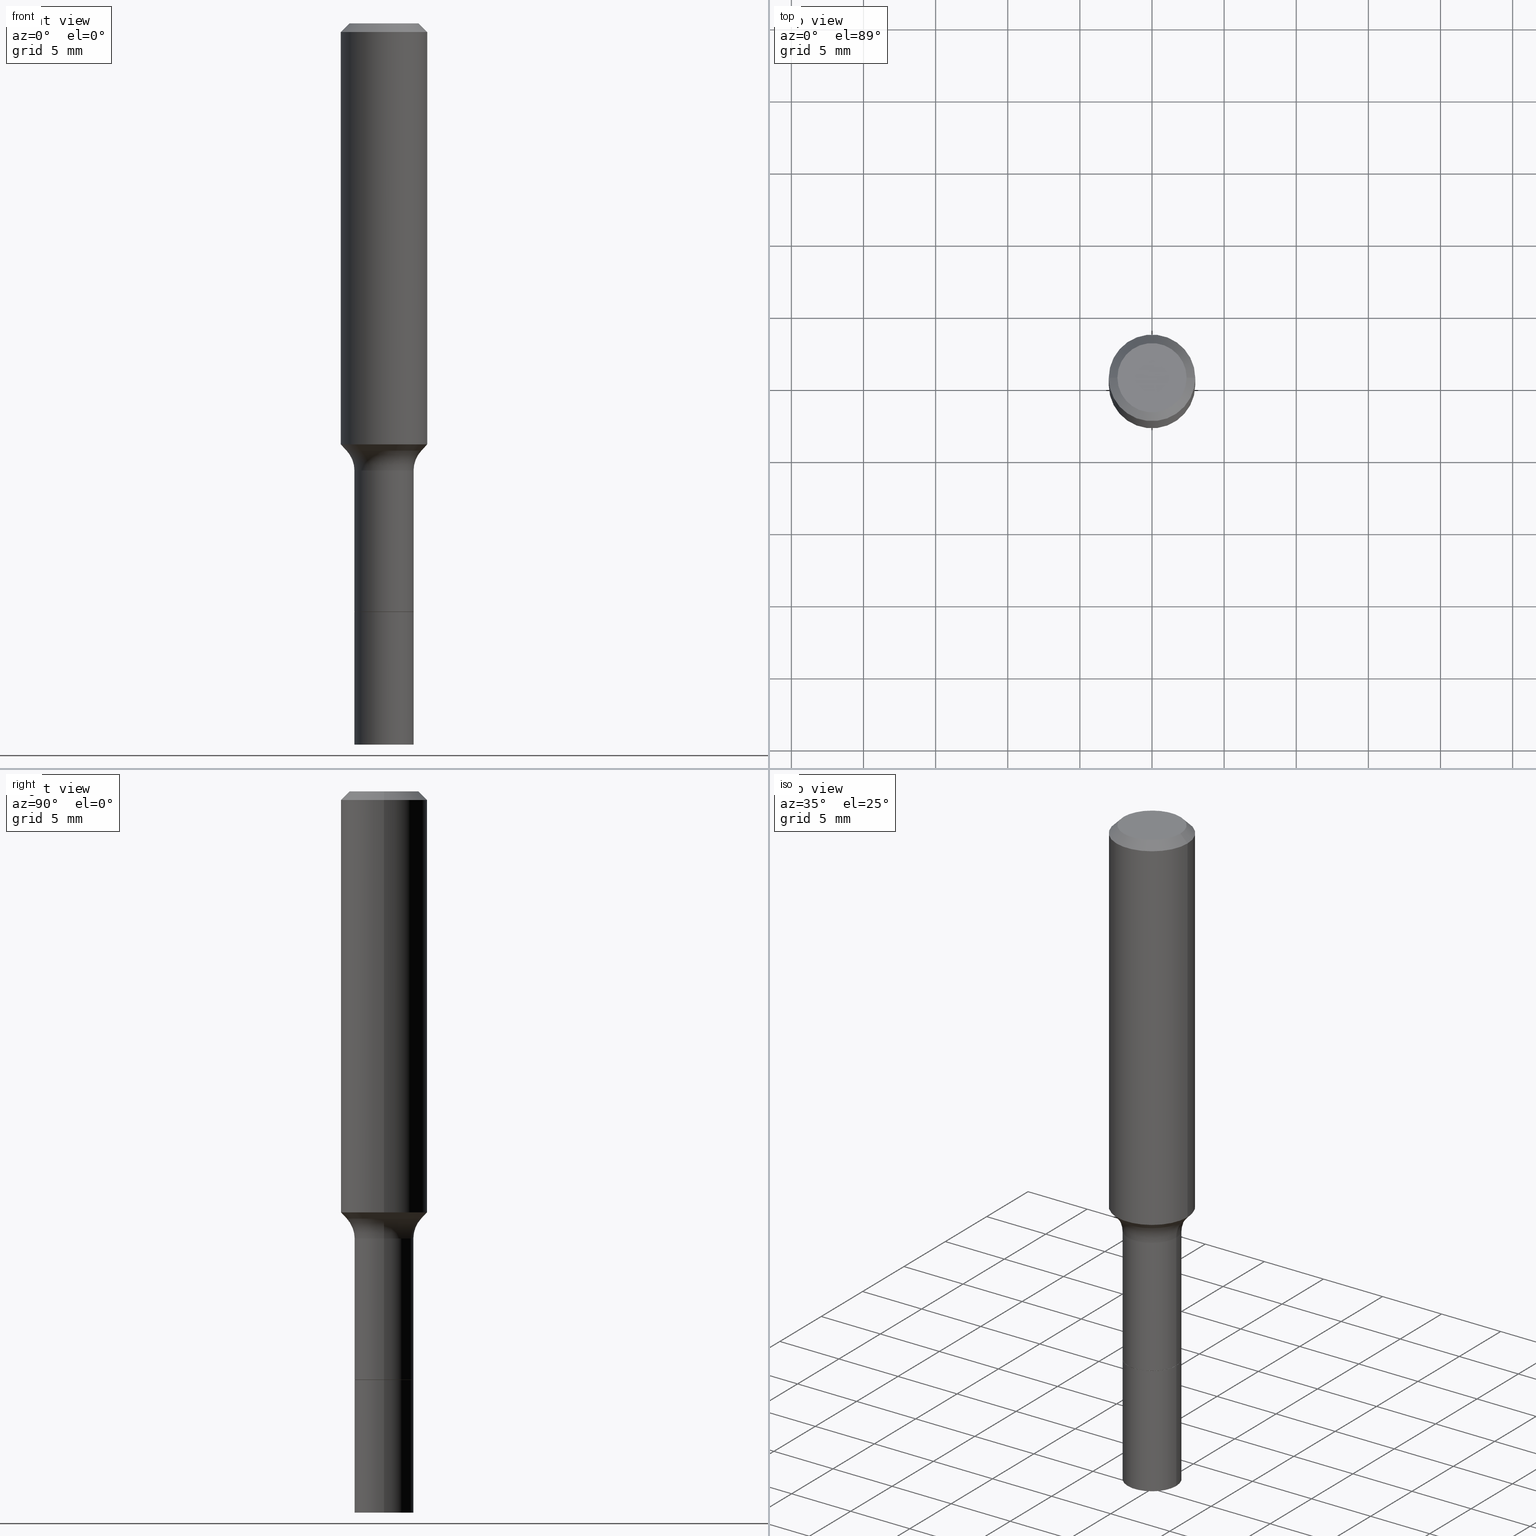
[diagram: canonical four-view strip — front | top / right | iso, engineering-drawing reading convention]
A machine part, canonical four-view strip (front | top / right | iso — engineering-drawing reading convention). The complete STEP part file that produces these views, byte-faithful:
ISO-10303-21;
HEADER;
FILE_DESCRIPTION (( 'STEP AP203' ),
    '1' );
FILE_NAME ('67086.STEP',
    '2025-04-01T15:28:01',
    ( '' ),
    ( '' ),
    'SwSTEP 2.0',
    'SolidWorks 2024',
    '' );
FILE_SCHEMA (( 'CONFIG_CONTROL_DESIGN' ));
ENDSEC;

DATA;
#1 = VERTEX_POINT ( 'NONE', #60 ) ;
#2 = VECTOR ( 'NONE', #232, 39.37007874015748143 ) ;
#3 = CC_DESIGN_SECURITY_CLASSIFICATION ( #262, ( #162 ) ) ;
#4 = ORIENTED_EDGE ( 'NONE', *, *, #180, .F. ) ;
#5 = VECTOR ( 'NONE', #122, 39.37007874015748143 ) ;
#6 = CIRCLE ( 'NONE', #305, 0.08070000000000010498 ) ;
#7 = ADVANCED_FACE ( 'NONE', ( #342 ), #13, .T. ) ;
#8 = EDGE_CURVE ( 'NONE', #140, #25, #467, .T. ) ;
#9 = VERTEX_POINT ( 'NONE', #379 ) ;
#10 = ORIENTED_EDGE ( 'NONE', *, *, #441, .F. ) ;
#11 = EDGE_CURVE ( 'NONE', #90, #1, #235, .T. ) ;
#12 = DIRECTION ( 'NONE',  ( 2.438088387897960049E-29, -3.491481338843145188E-15, -1.000000000000000000 ) ) ;
#13 = CONICAL_SURFACE ( 'NONE', #506, 0.1180999999999999966, 0.7853981633974461696 ) ;
#14 = VERTEX_POINT ( 'NONE', #344 ) ;
#15 = CIRCLE ( 'NONE', #303, 0.1180999999999999966 ) ;
#16 = ORIENTED_EDGE ( 'NONE', *, *, #205, .T. ) ;
#17 = CARTESIAN_POINT ( 'NONE',  ( 0.000000000000000000, 0.000000000000000000, 0.000000000000000000 ) ) ;
#18 = ADVANCED_FACE ( 'NONE', ( #424 ), #72, .F. ) ;
#19 = EDGE_LOOP ( 'NONE', ( #297, #458, #502, #301 ) ) ;
#20 = CARTESIAN_POINT ( 'NONE',  ( 3.928645637136421723E-29, -5.609064770851513425E-15, -1.606499999999999817 ) ) ;
#21 = CARTESIAN_POINT ( 'NONE',  ( 0.08069999999999999396, -6.172589858940796076E-15, -1.606499999999999817 ) ) ;
#22 = CARTESIAN_POINT ( 'NONE',  ( 4.813905344975441835E-29, -6.872981015512731707E-15, -1.968500000000000139 ) ) ;
#23 = CARTESIAN_POINT ( 'NONE',  ( 0.1181000000000001354, -4.835982970616103918E-15, -1.148880572195881467 ) ) ;
#24 = AXIS2_PLACEMENT_3D ( 'NONE', #269, #302, #188 ) ;
#25 = VERTEX_POINT ( 'NONE', #62 ) ;
#26 = LINE ( 'NONE', #228, #67 ) ;
#27 = EDGE_CURVE ( 'NONE', #270, #290, #396, .T. ) ;
#28 = DIRECTION ( 'NONE',  ( -2.445468806185136597E-29, 3.491481338843145583E-15, 1.000000000000000000 ) ) ;
#29 = FACE_OUTER_BOUND ( 'NONE', #334, .T. ) ;
#30 = EDGE_CURVE ( 'NONE', #293, #127, #65, .T. ) ;
#31 = DIRECTION ( 'NONE',  ( -1.000000000000000000, 7.105427357601005014E-15, 0.000000000000000000 ) ) ;
#32 = LOCAL_TIME ( 11, 28, 1.000000000000000000, #479 ) ;
#33 = AXIS2_PLACEMENT_3D ( 'NONE', #498, #70, #225 ) ;
#34 = APPROVAL_DATE_TIME ( #321, #242 ) ;
#35 = EDGE_CURVE ( 'NONE', #9, #127, #478, .T. ) ;
#36 = PERSON_AND_ORGANIZATION_ROLE ( 'creator' ) ;
#37 = DIRECTION ( 'NONE',  ( -2.445468806185136877E-29, 3.491481338843145188E-15, 1.000000000000000000 ) ) ;
#38 = DIRECTION ( 'NONE',  ( 1.000000000000000000, -6.982962677686265133E-15, 0.000000000000000000 ) ) ;
#39 = CALENDAR_DATE ( 2025, 1, 4 ) ;
#40 = CARTESIAN_POINT ( 'NONE',  ( -0.1180999999999999966, -1.207730962869736176E-15, -0.02362000000000014435 ) ) ;
#41 = CARTESIAN_POINT ( 'NONE',  ( 0.1606999999999999540, -5.383515076362241754E-15, -1.220499999999999918 ) ) ;
#42 = AXIS2_PLACEMENT_3D ( 'NONE', #195, #482, #392 ) ;
#43 = APPLICATION_CONTEXT ( 'configuration controlled 3d designs of mechanical parts and assemblies' ) ;
#44 = EDGE_LOOP ( 'NONE', ( #407, #504, #405, #57 ) ) ;
#45 = AXIS2_PLACEMENT_3D ( 'NONE', #22, #187, #347 ) ;
#46 = LINE ( 'NONE', #136, #371 ) ;
#47 = ORIENTED_EDGE ( 'NONE', *, *, #480, .T. ) ;
#48 = PRODUCT_RELATED_PRODUCT_CATEGORY ( 'detail', '', ( #175 ) ) ;
#49 = ORIENTED_EDGE ( 'NONE', *, *, #27, .T. ) ;
#50 = EDGE_CURVE ( 'NONE', #461, #127, #15, .T. ) ;
#51 = DIRECTION ( 'NONE',  ( 1.000000000000000000, -6.982962677686261977E-15, 0.000000000000000000 ) ) ;
#52 = ORIENTED_EDGE ( 'NONE', *, *, #106, .F. ) ;
#53 = AXIS2_PLACEMENT_3D ( 'NONE', #284, #287, #483 ) ;
#54 = AXIS2_PLACEMENT_3D ( 'NONE', #124, #207, #278 ) ;
#55 = ORIENTED_EDGE ( 'NONE', *, *, #480, .F. ) ;
#56 = CARTESIAN_POINT ( 'NONE',  ( -0.1021917038704663744, -3.344742481874600087E-15, -1.165940131195000173 ) ) ;
#57 = ORIENTED_EDGE ( 'NONE', *, *, #139, .F. ) ;
#58 = ORIENTED_EDGE ( 'NONE', *, *, #415, .F. ) ;
#59 = DIRECTION ( 'NONE',  ( -2.445468806185136597E-29, 3.491481338843145583E-15, 1.000000000000000000 ) ) ;
#60 = CARTESIAN_POINT ( 'NONE',  ( -0.08069999999999993845, -4.360928014361675851E-15, -1.220499999999999918 ) ) ;
#61 = FACE_OUTER_BOUND ( 'NONE', #19, .T. ) ;
#62 = CARTESIAN_POINT ( 'NONE',  ( 0.1021917038704663189, -4.784459064372305564E-15, -1.165940131195000173 ) ) ;
#63 = PLANE ( 'NONE',  #264 ) ;
#64 = EDGE_CURVE ( 'NONE', #270, #14, #473, .T. ) ;
#65 = LINE ( 'NONE', #384, #2 ) ;
#66 = DIRECTION ( 'NONE',  ( -1.000000000000000000, 6.982962677686265922E-15, -4.876176775795935793E-29 ) ) ;
#67 = VECTOR ( 'NONE', #380, 39.37007874015748143 ) ;
#68 = EDGE_CURVE ( 'NONE', #299, #365, #151, .T. ) ;
#69 = APPROVAL_STATUS ( 'not_yet_approved' ) ;
#70 = DIRECTION ( 'NONE',  ( -2.445468806185136597E-29, 3.491481338843145583E-15, 1.000000000000000000 ) ) ;
#71 = DIRECTION ( 'NONE',  ( 1.000000000000000000, -6.982962677686265922E-15, 4.876176775795935793E-29 ) ) ;
#72 = TOROIDAL_SURFACE ( 'NONE', #211, 0.1606999999999999540, 0.08000000000000000167 ) ;
#73 = SECURITY_CLASSIFICATION_LEVEL ( 'unclassified' ) ;
#74 = DIRECTION ( 'NONE',  ( 1.000000000000000000, -6.982962677686265922E-15, 0.000000000000000000 ) ) ;
#75 = PRODUCT_DEFINITION ( 'UNKNOWN', '', #162, #341 ) ;
#76 = AXIS2_PLACEMENT_3D ( 'NONE', #78, #203, #71 ) ;
#77 = AXIS2_PLACEMENT_3D ( 'NONE', #429, #390, #31 ) ;
#78 = CARTESIAN_POINT ( 'NONE',  ( 1.074206145470067474E-30, -1.108127649382113880E-14, -1.606499999999999817 ) ) ;
#79 = PERSON_AND_ORGANIZATION ( #119, #432 ) ;
#80 = PLANE ( 'NONE',  #53 ) ;
#81 =( NAMED_UNIT ( * ) PLANE_ANGLE_UNIT ( ) SI_UNIT ( $, .RADIAN. ) );
#82 = DATE_AND_TIME ( #117, #417 ) ;
#83 = CARTESIAN_POINT ( 'NONE',  ( 0.000000000000000000, 0.000000000000000000, 0.000000000000000000 ) ) ;
#84 = ADVANCED_FACE ( 'NONE', ( #438 ), #471, .F. ) ;
#85 = ORIENTED_EDGE ( 'NONE', *, *, #11, .T. ) ;
#86 = DIRECTION ( 'NONE',  ( -2.445468806185136597E-29, 3.491481338843145583E-15, 1.000000000000000000 ) ) ;
#87 = ADVANCED_FACE ( 'NONE', ( #468 ), #170, .T. ) ;
#88 = ORIENTED_EDGE ( 'NONE', *, *, #349, .F. ) ;
#89 = ORIENTED_EDGE ( 'NONE', *, *, #277, .F. ) ;
#90 = VERTEX_POINT ( 'NONE', #475 ) ;
#91 = ADVANCED_FACE ( 'NONE', ( #120 ), #370, .F. ) ;
#92 = ORIENTED_EDGE ( 'NONE', *, *, #68, .T. ) ;
#93 = AXIS2_PLACEMENT_3D ( 'NONE', #333, #363, #126 ) ;
#94 = DIRECTION ( 'NONE',  ( -0.6819983600624995868, 7.399397606724291309E-15, 0.7313537016191693496 ) ) ;
#95 = PRODUCT_DEFINITION_SHAPE ( 'NONE', 'NONE',  #75 ) ;
#96 = ORIENTED_EDGE ( 'NONE', *, *, #35, .T. ) ;
#97 = DIRECTION ( 'NONE',  ( -2.445468806185136597E-29, 3.491481338843145583E-15, 1.000000000000000000 ) ) ;
#98 = MANIFOLD_SOLID_BREP ( 'Body-Move/Copy2[1]', #488 ) ;
#99 = ORIENTED_EDGE ( 'NONE', *, *, #109, .T. ) ;
#100 = DIRECTION ( 'NONE',  ( -2.445468806185136597E-29, 3.491481338843145583E-15, 1.000000000000000000 ) ) ;
#101 = LOCAL_TIME ( 11, 28, 1.000000000000000000, #193 ) ;
#102 = VERTEX_POINT ( 'NONE', #21 ) ;
#103 = CARTESIAN_POINT ( 'NONE',  ( -0.08069999999999999396, -4.360928014361675851E-15, -1.606000000000000094 ) ) ;
#104 = DIRECTION ( 'NONE',  ( 1.000000000000000000, -6.982962677686261977E-15, 0.000000000000000000 ) ) ;
#105 = DIRECTION ( 'NONE',  ( -2.445468806185136877E-29, 3.491481338843145188E-15, 1.000000000000000000 ) ) ;
#106 = EDGE_CURVE ( 'NONE', #9, #409, #213, .T. ) ;
#107 = DIRECTION ( 'NONE',  ( -2.445468806185136597E-29, 3.491481338843145583E-15, 1.000000000000000000 ) ) ;
#108 = CYLINDRICAL_SURFACE ( 'NONE', #364, 0.08070000000000004947 ) ;
#109 = EDGE_CURVE ( 'NONE', #1, #90, #500, .T. ) ;
#110 = DIRECTION ( 'NONE',  ( -2.445468806185136597E-29, 3.491481338843145583E-15, 1.000000000000000000 ) ) ;
#111 = CC_DESIGN_APPROVAL ( #463, ( #262 ) ) ;
#112 = ADVANCED_BREP_SHAPE_REPRESENTATION ( '67086', ( #98, #267, #186 ), #253 ) ;
#113 = DIMENSIONAL_EXPONENTS ( 1.000000000000000000, 0.000000000000000000, 0.000000000000000000, 0.000000000000000000, 0.000000000000000000, 0.000000000000000000, 0.000000000000000000 ) ;
#114 = AXIS2_PLACEMENT_3D ( 'NONE', #219, #443, #202 ) ;
#115 = PERSON_AND_ORGANIZATION ( #119, #432 ) ;
#116 = DIRECTION ( 'NONE',  ( 1.000000000000000000, -6.982962677686265922E-15, 0.000000000000000000 ) ) ;
#117 = CALENDAR_DATE ( 2025, 1, 4 ) ;
#118 =( LENGTH_UNIT ( ) NAMED_UNIT ( * ) SI_UNIT ( $, .METRE. ) );
#119 = PERSON ( 'UNSPECIFIED', 'UNSPECIFIED', 'UNSPECIFIED', ('UNSPECIFIED'), ('UNSPECIFIED'), ('UNSPECIFIED') ) ;
#120 = FACE_OUTER_BOUND ( 'NONE', #494, .T. ) ;
#121 = AXIS2_PLACEMENT_3D ( 'NONE', #487, #339, #209 ) ;
#122 = DIRECTION ( 'NONE',  ( 0.7071067811865460184, -7.319954787623251312E-15, -0.7071067811865490160 ) ) ;
#123 = DATE_TIME_ROLE ( 'classification_date' ) ;
#124 = CARTESIAN_POINT ( 'NONE',  ( 3.927422902733329482E-29, -5.607319030182091922E-15, -1.606000000000000094 ) ) ;
#125 = EDGE_CURVE ( 'NONE', #133, #299, #452, .T. ) ;
#126 = DIRECTION ( 'NONE',  ( 1.000000000000000000, -6.982962677686260400E-15, 0.000000000000000000 ) ) ;
#127 = VERTEX_POINT ( 'NONE', #135 ) ;
#128 = VECTOR ( 'NONE', #105, 39.37007874015748143 ) ;
#129 = EDGE_LOOP ( 'NONE', ( #404, #372, #497, #328 ) ) ;
#130 = ORIENTED_EDGE ( 'NONE', *, *, #27, .F. ) ;
#131 = ADVANCED_FACE ( 'NONE', ( #493 ), #80, .T. ) ;
#132 = LINE ( 'NONE', #56, #296 ) ;
#133 = VERTEX_POINT ( 'NONE', #413 ) ;
#134 = VECTOR ( 'NONE', #309, 39.37007874015748143 ) ;
#135 = CARTESIAN_POINT ( 'NONE',  ( 0.1180999999999999966, -9.071566814582237199E-16, -0.02362000000000014435 ) ) ;
#136 = CARTESIAN_POINT ( 'NONE',  ( -0.1180999999999999966, 7.422191030112725094E-16, -0.02362000000000014435 ) ) ;
#137 = CARTESIAN_POINT ( 'NONE',  ( 2.984694677948959472E-29, -4.261352974058059028E-15, -1.220499999999999918 ) ) ;
#138 = CARTESIAN_POINT ( 'NONE',  ( 3.928645637136422284E-29, -5.609064770851513425E-15, -1.606500000000000261 ) ) ;
#139 = EDGE_CURVE ( 'NONE', #365, #220, #346, .T. ) ;
#140 = VERTEX_POINT ( 'NONE', #298 ) ;
#141 = CARTESIAN_POINT ( 'NONE',  ( 5.776197320209328408E-31, -8.246878922347560526E-17, -0.02362000000000014435 ) ) ;
#142 = CIRCLE ( 'NONE', #42, 0.09447999999999998066 ) ;
#143 = DIRECTION ( 'NONE',  ( 1.000000000000000000, -6.982962677686265133E-15, 0.000000000000000000 ) ) ;
#144 = AXIS2_PLACEMENT_3D ( 'NONE', #316, #279, #74 ) ;
#145 = VECTOR ( 'NONE', #199, 39.37007874015748854 ) ;
#146 = EDGE_LOOP ( 'NONE', ( #288, #130 ) ) ;
#147 =( NAMED_UNIT ( * ) SI_UNIT ( $, .STERADIAN. ) SOLID_ANGLE_UNIT ( ) );
#148 = DIRECTION ( 'NONE',  ( 0.7071067811864267805, -2.468850131080992517E-15, 0.7071067811866682540 ) ) ;
#149 = CYLINDRICAL_SURFACE ( 'NONE', #329, 0.08069999999999998008 ) ;
#150 = AXIS2_PLACEMENT_3D ( 'NONE', #492, #107, #104 ) ;
#151 = LINE ( 'NONE', #312, #239 ) ;
#152 = PERSON_AND_ORGANIZATION_ROLE ( 'creator' ) ;
#153 = CC_DESIGN_APPROVAL ( #242, ( #75 ) ) ;
#154 = CONICAL_SURFACE ( 'NONE', #24, 0.1180999999999999966, 0.7853981633974461696 ) ;
#155 = DIRECTION ( 'NONE',  ( -0.7071067811864267805, 7.493145998869918709E-15, 0.7071067811866682540 ) ) ;
#156 = DIRECTION ( 'NONE',  ( 1.000000000000000000, -6.982962677686266711E-15, 0.000000000000000000 ) ) ;
#157 = APPLICATION_PROTOCOL_DEFINITION ( 'international standard', 'config_control_design', 1994, #43 ) ;
#158 = CARTESIAN_POINT ( 'NONE',  ( 3.928645637136421723E-29, -5.609064770851513425E-15, -1.606499999999999817 ) ) ;
#159 = APPROVAL_STATUS ( 'not_yet_approved' ) ;
#160 = CARTESIAN_POINT ( 'NONE',  ( 4.813905344975441835E-29, -6.872981015512731707E-15, -1.968500000000000139 ) ) ;
#161 = EDGE_CURVE ( 'NONE', #293, #447, #206, .T. ) ;
#162 = PRODUCT_DEFINITION_FORMATION_WITH_SPECIFIED_SOURCE ( 'ANY', '', #175, .NOT_KNOWN. ) ;
#163 = CARTESIAN_POINT ( 'NONE',  ( 2.851270220716778580E-29, -4.070858210275671756E-15, -1.165940131195000173 ) ) ;
#164 = PERSON_AND_ORGANIZATION ( #119, #432 ) ;
#165 = DIRECTION ( 'NONE',  ( -2.445468806185136597E-29, 3.491481338843145583E-15, 1.000000000000000000 ) ) ;
#166 = CC_DESIGN_PERSON_AND_ORGANIZATION_ASSIGNMENT ( #428, #36, ( #162 ) ) ;
#167 = EDGE_LOOP ( 'NONE', ( #210, #368, #249, #169 ) ) ;
#168 = DIRECTION ( 'NONE',  ( -6.982962677686266711E-15, -1.000000000000000000, 3.491481338843145583E-15 ) ) ;
#169 = ORIENTED_EDGE ( 'NONE', *, *, #477, .F. ) ;
#170 = CONICAL_SURFACE ( 'NONE', #144, 0.08019999999999999352, 0.7853981633972775267 ) ;
#171 = CC_DESIGN_PERSON_AND_ORGANIZATION_ASSIGNMENT ( #400, #152, ( #75 ) ) ;
#172 = AXIS2_PLACEMENT_3D ( 'NONE', #385, #110, #388 ) ;
#173 = ORIENTED_EDGE ( 'NONE', *, *, #161, .F. ) ;
#174 = ORIENTED_EDGE ( 'NONE', *, *, #477, .T. ) ;
#175 = PRODUCT ( '67086', '67086', '', ( #281 ) ) ;
#176 = EDGE_LOOP ( 'NONE', ( #517, #489, #177, #421 ) ) ;
#177 = ORIENTED_EDGE ( 'NONE', *, *, #311, .F. ) ;
#178 = AXIS2_PLACEMENT_3D ( 'NONE', #141, #348, #503 ) ;
#179 = DIRECTION ( 'NONE',  ( 1.000000000000000000, -6.982962677686265133E-15, 4.876176775795935232E-29 ) ) ;
#180 = EDGE_CURVE ( 'NONE', #25, #140, #418, .T. ) ;
#181 = ORIENTED_EDGE ( 'NONE', *, *, #254, .T. ) ;
#182 = DIRECTION ( 'NONE',  ( -2.445468806185136597E-29, 3.491481338843145583E-15, 1.000000000000000000 ) ) ;
#183 = EDGE_LOOP ( 'NONE', ( #52, #96, #251, #304 ) ) ;
#184 = CARTESIAN_POINT ( 'NONE',  ( 2.809551601337159132E-29, -4.011295078381354866E-15, -1.148880572195881467 ) ) ;
#185 = DIRECTION ( 'NONE',  ( -0.7071067811865460184, 2.468850131082241283E-15, -0.7071067811865490160 ) ) ;
#186 = AXIS2_PLACEMENT_3D ( 'NONE', #394, #515, #362 ) ;
#187 = DIRECTION ( 'NONE',  ( -2.445468806185136597E-29, 3.491481338843145583E-15, 1.000000000000000000 ) ) ;
#188 = DIRECTION ( 'NONE',  ( -1.000000000000000000, 6.982962677686266711E-15, 0.000000000000000000 ) ) ;
#189 = AXIS2_PLACEMENT_3D ( 'NONE', #373, #12, #274 ) ;
#190 = DIRECTION ( 'NONE',  ( -2.445468806185136597E-29, 3.491481338843145583E-15, 1.000000000000000000 ) ) ;
#191 = ORIENTED_EDGE ( 'NONE', *, *, #109, .F. ) ;
#192 = FACE_OUTER_BOUND ( 'NONE', #291, .T. ) ;
#193 = COORDINATED_UNIVERSAL_TIME_OFFSET ( 5, 0, .BEHIND. ) ;
#194 = CARTESIAN_POINT ( 'NONE',  ( 0.08070000000000010498, -7.436506103602013570E-15, -1.968500000000000139 ) ) ;
#195 = CARTESIAN_POINT ( 'NONE',  ( 7.545787641473140628E-46, -1.077338491108201769E-31, -3.085620075131671975E-17 ) ) ;
#196 = CARTESIAN_POINT ( 'NONE',  ( 0.08070000000000004947, -6.172589858940796076E-15, -1.606499999999999817 ) ) ;
#197 = AXIS2_PLACEMENT_3D ( 'NONE', #230, #59, #223 ) ;
#198 = APPROVAL_ROLE ( '' ) ;
#199 = DIRECTION ( 'NONE',  ( 0.6819983600624995868, -2.208861293262486847E-15, 0.7313537016191693496 ) ) ;
#200 = ADVANCED_FACE ( 'NONE', ( #247 ), #481, .T. ) ;
#201 = CALENDAR_DATE ( 2025, 1, 4 ) ;
#202 = DIRECTION ( 'NONE',  ( 1.000000000000000000, -6.982962677686267499E-15, 4.875432709231658792E-29 ) ) ;
#203 = DIRECTION ( 'NONE',  ( -2.438088387897960049E-29, 3.491481338843145188E-15, 1.000000000000000000 ) ) ;
#204 = APPROVAL_DATE_TIME ( #82, #463 ) ;
#205 = EDGE_CURVE ( 'NONE', #102, #14, #275, .T. ) ;
#206 = CIRCLE ( 'NONE', #248, 0.1181000000000001354 ) ;
#207 = DIRECTION ( 'NONE',  ( -2.445468806185136597E-29, 3.491481338843145583E-15, 1.000000000000000000 ) ) ;
#208 = ORIENTED_EDGE ( 'NONE', *, *, #8, .F. ) ;
#209 = DIRECTION ( 'NONE',  ( 1.000000000000000000, -6.982962677686271444E-15, 0.000000000000000000 ) ) ;
#210 = ORIENTED_EDGE ( 'NONE', *, *, #496, .T. ) ;
#211 = AXIS2_PLACEMENT_3D ( 'NONE', #227, #382, #412 ) ;
#212 = EDGE_LOOP ( 'NONE', ( #456, #49, #174, #55 ) ) ;
#213 = CIRCLE ( 'NONE', #114, 0.09447999999999998066 ) ;
#214 = VECTOR ( 'NONE', #37, 39.37007874015748143 ) ;
#215 = EDGE_LOOP ( 'NONE', ( #326, #246, #453, #88 ) ) ;
#216 = ADVANCED_FACE ( 'NONE', ( #294 ), #440, .T. ) ;
#217 = ORIENTED_EDGE ( 'NONE', *, *, #125, .T. ) ;
#218 = PLANE ( 'NONE',  #189 ) ;
#219 = CARTESIAN_POINT ( 'NONE',  ( 7.545787641473140628E-46, -1.077338491108201769E-31, -3.085620075131671975E-17 ) ) ;
#220 = VERTEX_POINT ( 'NONE', #518 ) ;
#221 = APPROVAL_PERSON_ORGANIZATION ( #512, #463, #313 ) ;
#222 = ORIENTED_EDGE ( 'NONE', *, *, #513, .T. ) ;
#223 = DIRECTION ( 'NONE',  ( 1.000000000000000000, -6.982962677686266711E-15, 4.876176775795936353E-29 ) ) ;
#224 = DIRECTION ( 'NONE',  ( -1.000000000000000000, 6.982962677686266711E-15, 0.000000000000000000 ) ) ;
#225 = DIRECTION ( 'NONE',  ( 1.000000000000000000, -6.982962677686261977E-15, 0.000000000000000000 ) ) ;
#226 = CC_DESIGN_DATE_AND_TIME_ASSIGNMENT ( #507, #123, ( #262 ) ) ;
#227 = CARTESIAN_POINT ( 'NONE',  ( 2.984694677948959472E-29, -4.261352974058059028E-15, -1.220499999999999918 ) ) ;
#228 = CARTESIAN_POINT ( 'NONE',  ( -0.08069999999999998008, 5.734079877584007085E-16, -3.969580617835708043E-30 ) ) ;
#229 = ORIENTED_EDGE ( 'NONE', *, *, #437, .F. ) ;
#230 = CARTESIAN_POINT ( 'NONE',  ( 0.000000000000000000, 0.000000000000000000, 0.000000000000000000 ) ) ;
#231 = VECTOR ( 'NONE', #148, 39.37007874015748143 ) ;
#232 = DIRECTION ( 'NONE',  ( -2.445468806185136877E-29, 3.491481338843145188E-15, 1.000000000000000000 ) ) ;
#233 = DATE_AND_TIME ( #39, #444 ) ;
#234 = DIRECTION ( 'NONE',  ( 2.438088387897960049E-29, -3.491481338843145188E-15, -1.000000000000000000 ) ) ;
#235 = CIRCLE ( 'NONE', #259, 0.08069999999999993845 ) ;
#236 = CALENDAR_DATE ( 2025, 1, 4 ) ;
#237 = EDGE_CURVE ( 'NONE', #25, #90, #376, .T. ) ;
#238 = CARTESIAN_POINT ( 'NONE',  ( 0.1021917038704663744, -4.784459064372305564E-15, -1.165940131195000173 ) ) ;
#239 = VECTOR ( 'NONE', #155, 39.37007874015748143 ) ;
#240 = AXIS2_PLACEMENT_3D ( 'NONE', #158, #357, #474 ) ;
#241 = CARTESIAN_POINT ( 'NONE',  ( 2.809551601337159132E-29, -4.011295078381354866E-15, -1.148880572195881467 ) ) ;
#242 = APPROVAL ( #354, 'UNSPECIFIED' ) ;
#243 = PERSON_AND_ORGANIZATION ( #119, #432 ) ;
#244 = DIRECTION ( 'NONE',  ( 1.000000000000000000, -6.982962677686266711E-15, 4.876176775795936353E-29 ) ) ;
#245 = DIRECTION ( 'NONE',  ( -2.445468806185136877E-29, 3.491481338843145188E-15, 1.000000000000000000 ) ) ;
#246 = ORIENTED_EDGE ( 'NONE', *, *, #8, .T. ) ;
#247 = FACE_OUTER_BOUND ( 'NONE', #129, .T. ) ;
#248 = AXIS2_PLACEMENT_3D ( 'NONE', #241, #86, #286 ) ;
#249 = ORIENTED_EDGE ( 'NONE', *, *, #205, .F. ) ;
#250 = CC_DESIGN_PERSON_AND_ORGANIZATION_ASSIGNMENT ( #387, #472, ( #162 ) ) ;
#251 = ORIENTED_EDGE ( 'NONE', *, *, #311, .T. ) ;
#252 = ORIENTED_EDGE ( 'NONE', *, *, #441, .T. ) ;
#253 =( GEOMETRIC_REPRESENTATION_CONTEXT ( 3 ) GLOBAL_UNCERTAINTY_ASSIGNED_CONTEXT ( ( #359 ) ) GLOBAL_UNIT_ASSIGNED_CONTEXT ( ( #320, #81, #147 ) ) REPRESENTATION_CONTEXT ( 'NONE', 'WORKASPACE' ) );
#254 = EDGE_CURVE ( 'NONE', #140, #447, #132, .T. ) ;
#255 = ORIENTED_EDGE ( 'NONE', *, *, #366, .T. ) ;
#256 = FACE_OUTER_BOUND ( 'NONE', #377, .T. ) ;
#257 = ADVANCED_FACE ( 'NONE', ( #256 ), #218, .F. ) ;
#258 = DIRECTION ( 'NONE',  ( -2.445468806185136597E-29, 3.491481338843145583E-15, 1.000000000000000000 ) ) ;
#259 = AXIS2_PLACEMENT_3D ( 'NONE', #137, #258, #268 ) ;
#260 = ORIENTED_EDGE ( 'NONE', *, *, #139, .T. ) ;
#261 = DIRECTION ( 'NONE',  ( 1.000000000000000000, -6.982962677686261977E-15, 0.000000000000000000 ) ) ;
#262 = SECURITY_CLASSIFICATION ( '', '', #73 ) ;
#263 = CARTESIAN_POINT ( 'NONE',  ( 5.776197320209328408E-31, -8.246878922347560526E-17, -0.02362000000000014435 ) ) ;
#264 = AXIS2_PLACEMENT_3D ( 'NONE', #310, #234, #66 ) ;
#265 = APPLICATION_PROTOCOL_DEFINITION ( 'international standard', 'config_control_design', 1994, #324 ) ;
#266 = FACE_OUTER_BOUND ( 'NONE', #212, .T. ) ;
#267 = MANIFOLD_SOLID_BREP ( 'Body-Move/Copy2[2]', #271 ) ;
#268 = DIRECTION ( 'NONE',  ( 1.000000000000000000, -6.982962677686265133E-15, 0.000000000000000000 ) ) ;
#269 = CARTESIAN_POINT ( 'NONE',  ( 5.776197320209328408E-31, -8.246878922347560526E-17, -0.02362000000000014435 ) ) ;
#270 = VERTEX_POINT ( 'NONE', #300 ) ;
#271 = CLOSED_SHELL ( 'NONE', ( #87, #7, #216, #327, #18, #200, #381, #91, #340, #352, #295, #399, #84, #319 ) ) ;
#272 = DIRECTION ( 'NONE',  ( 1.000000000000000000, -6.982962677686265133E-15, 4.876176775795935232E-29 ) ) ;
#273 = COORDINATED_UNIVERSAL_TIME_OFFSET ( 5, 0, .BEHIND. ) ;
#274 = DIRECTION ( 'NONE',  ( -1.000000000000000000, 6.982962677686265922E-15, -4.876176775795935793E-29 ) ) ;
#275 = CIRCLE ( 'NONE', #121, 0.08069999999999999396 ) ;
#276 = DIRECTION ( 'NONE',  ( 1.000000000000000000, -6.982962677686265922E-15, 4.883557194083112901E-29 ) ) ;
#277 = EDGE_CURVE ( 'NONE', #133, #220, #495, .T. ) ;
#278 = DIRECTION ( 'NONE',  ( 1.000000000000000000, -6.982962677686260400E-15, 0.000000000000000000 ) ) ;
#279 = DIRECTION ( 'NONE',  ( -2.445468806185136597E-29, 3.491481338843145583E-15, 1.000000000000000000 ) ) ;
#280 = APPROVAL_ROLE ( '' ) ;
#281 = MECHANICAL_CONTEXT ( 'NONE', #324, 'mechanical' ) ;
#282 = AXIS2_PLACEMENT_3D ( 'NONE', #410, #335, #38 ) ;
#283 = CIRCLE ( 'NONE', #54, 0.08069999999999999396 ) ;
#284 = CARTESIAN_POINT ( 'NONE',  ( 4.813905344975441835E-29, -6.872981015512731707E-15, -1.968500000000000139 ) ) ;
#285 = CARTESIAN_POINT ( 'NONE',  ( 5.776197320209328408E-31, -8.246878922347560526E-17, -0.02362000000000014435 ) ) ;
#286 = DIRECTION ( 'NONE',  ( 1.000000000000000000, -6.982962677686265133E-15, 0.000000000000000000 ) ) ;
#287 = DIRECTION ( 'NONE',  ( 2.438088387897960049E-29, -3.491481338843145188E-15, -1.000000000000000000 ) ) ;
#288 = ORIENTED_EDGE ( 'NONE', *, *, #496, .F. ) ;
#289 = CIRCLE ( 'NONE', #490, 0.1181000000000001354 ) ;
#290 = VERTEX_POINT ( 'NONE', #194 ) ;
#291 = EDGE_LOOP ( 'NONE', ( #449, #442, #414, #486 ) ) ;
#292 = EDGE_CURVE ( 'NONE', #365, #1, #26, .T. ) ;
#293 = VERTEX_POINT ( 'NONE', #23 ) ;
#294 = FACE_OUTER_BOUND ( 'NONE', #176, .T. ) ;
#295 = ADVANCED_FACE ( 'NONE', ( #61 ), #154, .T. ) ;
#296 = VECTOR ( 'NONE', #94, 39.37007874015748854 ) ;
#297 = ORIENTED_EDGE ( 'NONE', *, *, #35, .F. ) ;
#298 = CARTESIAN_POINT ( 'NONE',  ( -0.1021917038704663189, -3.344742481874600482E-15, -1.165940131195000173 ) ) ;
#299 = VERTEX_POINT ( 'NONE', #308 ) ;
#300 = CARTESIAN_POINT ( 'NONE',  ( -0.08070000000000010498, -5.667614905423721365E-15, -1.968500000000000139 ) ) ;
#301 = ORIENTED_EDGE ( 'NONE', *, *, #50, .T. ) ;
#302 = DIRECTION ( 'NONE',  ( 2.445468806185136597E-29, -3.491481338843145583E-15, -1.000000000000000000 ) ) ;
#303 = AXIS2_PLACEMENT_3D ( 'NONE', #285, #28, #156 ) ;
#304 = ORIENTED_EDGE ( 'NONE', *, *, #508, .F. ) ;
#305 = AXIS2_PLACEMENT_3D ( 'NONE', #160, #165, #51 ) ;
#306 = CYLINDRICAL_SURFACE ( 'NONE', #197, 0.1181000000000000660 ) ;
#307 = ORIENTED_EDGE ( 'NONE', *, *, #180, .T. ) ;
#308 = CARTESIAN_POINT ( 'NONE',  ( -0.08019999999999999352, -5.036560269597802316E-15, -1.606500000000000261 ) ) ;
#309 = DIRECTION ( 'NONE',  ( -2.445468806185136877E-29, 3.491481338843145188E-15, 1.000000000000000000 ) ) ;
#310 = CARTESIAN_POINT ( 'NONE',  ( 3.772893820736570314E-46, -5.386692455541008845E-32, -1.542810037565835988E-17 ) ) ;
#311 = EDGE_CURVE ( 'NONE', #127, #461, #322, .T. ) ;
#312 = CARTESIAN_POINT ( 'NONE',  ( -0.08019999999999999352, -5.039209496771913517E-15, -1.606500000000000261 ) ) ;
#313 = APPROVAL_ROLE ( '' ) ;
#314 = DIRECTION ( 'NONE',  ( -2.445468806185136597E-29, 3.491481338843145583E-15, 1.000000000000000000 ) ) ;
#315 = AXIS2_PLACEMENT_3D ( 'NONE', #398, #97, #179 ) ;
#316 = CARTESIAN_POINT ( 'NONE',  ( 3.928645637136422284E-29, -5.609064770851513425E-15, -1.606500000000000261 ) ) ;
#317 = DATE_TIME_ROLE ( 'creation_date' ) ;
#318 = CARTESIAN_POINT ( 'NONE',  ( -0.1181000000000000660, 8.391509709326787887E-16, -5.809262341591047287E-30 ) ) ;
#319 = ADVANCED_FACE ( 'NONE', ( #422 ), #446, .T. ) ;
#320 =( CONVERSION_BASED_UNIT ( 'INCH', #430 ) LENGTH_UNIT ( ) NAMED_UNIT ( #113 ) );
#321 = DATE_AND_TIME ( #356, #391 ) ;
#322 = CIRCLE ( 'NONE', #178, 0.1180999999999999966 ) ;
#323 = DIRECTION ( 'NONE',  ( 1.000000000000000000, -6.982962677686261977E-15, 0.000000000000000000 ) ) ;
#324 = APPLICATION_CONTEXT ( 'configuration controlled 3d designs of mechanical parts and assemblies' ) ;
#325 = DIRECTION ( 'NONE',  ( -2.445468806185136597E-29, 3.491481338843145583E-15, 1.000000000000000000 ) ) ;
#326 = ORIENTED_EDGE ( 'NONE', *, *, #254, .F. ) ;
#327 = ADVANCED_FACE ( 'NONE', ( #427 ), #358, .T. ) ;
#328 = ORIENTED_EDGE ( 'NONE', *, *, #366, .F. ) ;
#329 = AXIS2_PLACEMENT_3D ( 'NONE', #17, #466, #272 ) ;
#330 = EDGE_LOOP ( 'NONE', ( #217, #92, #229, #89 ) ) ;
#331 = EDGE_LOOP ( 'NONE', ( #307, #181, #173, #485 ) ) ;
#332 = ADVANCED_FACE ( 'NONE', ( #266 ), #108, .T. ) ;
#333 = CARTESIAN_POINT ( 'NONE',  ( 3.927422902733329482E-29, -5.607319030182091922E-15, -1.606000000000000094 ) ) ;
#334 = EDGE_LOOP ( 'NONE', ( #222, #369 ) ) ;
#335 = DIRECTION ( 'NONE',  ( -2.445468806185136597E-29, 3.491481338843145583E-15, 1.000000000000000000 ) ) ;
#336 = APPROVAL_PERSON_ORGANIZATION ( #243, #455, #198 ) ;
#337 = AXIS2_PLACEMENT_3D ( 'NONE', #163, #454, #323 ) ;
#338 = DIRECTION ( 'NONE',  ( 2.445468806185136597E-29, -3.491481338843145583E-15, -1.000000000000000000 ) ) ;
#339 = DIRECTION ( 'NONE',  ( -2.445468806185136597E-29, 3.491481338843145583E-15, 1.000000000000000000 ) ) ;
#340 = ADVANCED_FACE ( 'NONE', ( #505 ), #509, .T. ) ;
#341 = DESIGN_CONTEXT ( 'detailed design', #43, 'design' ) ;
#342 = FACE_OUTER_BOUND ( 'NONE', #183, .T. ) ;
#343 = DIRECTION ( 'NONE',  ( -2.445468806185136597E-29, 3.491481338843145583E-15, 1.000000000000000000 ) ) ;
#344 = CARTESIAN_POINT ( 'NONE',  ( -0.08069999999999999396, -5.667614905423722154E-15, -1.606499999999999817 ) ) ;
#345 = DIRECTION ( 'NONE',  ( 1.000000000000000000, -6.982962677686266711E-15, 0.000000000000000000 ) ) ;
#346 = CIRCLE ( 'NONE', #93, 0.08069999999999999396 ) ;
#347 = DIRECTION ( 'NONE',  ( 1.000000000000000000, -6.982962677686261977E-15, 0.000000000000000000 ) ) ;
#348 = DIRECTION ( 'NONE',  ( -2.445468806185136597E-29, 3.491481338843145583E-15, 1.000000000000000000 ) ) ;
#349 = EDGE_CURVE ( 'NONE', #447, #293, #289, .T. ) ;
#350 = EDGE_LOOP ( 'NONE', ( #374, #58 ) ) ;
#351 = CARTESIAN_POINT ( 'NONE',  ( 0.08069999999999998008, -5.635250880892814680E-16, 3.935074658067318957E-30 ) ) ;
#352 = ADVANCED_FACE ( 'NONE', ( #192 ), #306, .T. ) ;
#353 = CARTESIAN_POINT ( 'NONE',  ( -0.08070000000000004947, -5.035656783093112618E-15, -1.606499999999999817 ) ) ;
#354 = APPROVAL_STATUS ( 'not_yet_approved' ) ;
#355 = CARTESIAN_POINT ( 'NONE',  ( 0.08019999999999999352, -6.169098377601952280E-15, -1.606500000000000261 ) ) ;
#356 = CALENDAR_DATE ( 2025, 1, 4 ) ;
#357 = DIRECTION ( 'NONE',  ( -2.445468806185136597E-29, 3.491481338843145583E-15, 1.000000000000000000 ) ) ;
#358 = CONICAL_SURFACE ( 'NONE', #33, 0.1021917038704663744, 0.7504915783575633048 ) ;
#359 = UNCERTAINTY_MEASURE_WITH_UNIT (LENGTH_MEASURE( 1.000000000000000082E-05 ), #320, 'distance_accuracy_value', 'NONE');
#360 = COORDINATED_UNIVERSAL_TIME_OFFSET ( 5, 0, .BEHIND. ) ;
#361 = LINE ( 'NONE', #196, #501 ) ;
#362 = DIRECTION ( 'NONE',  ( 1.000000000000000000, 0.000000000000000000, 0.000000000000000000 ) ) ;
#363 = DIRECTION ( 'NONE',  ( -2.445468806185136597E-29, 3.491481338843145583E-15, 1.000000000000000000 ) ) ;
#364 = AXIS2_PLACEMENT_3D ( 'NONE', #20, #182, #345 ) ;
#365 = VERTEX_POINT ( 'NONE', #103 ) ;
#366 = EDGE_CURVE ( 'NONE', #220, #90, #462, .T. ) ;
#367 = DIRECTION ( 'NONE',  ( -2.445468806185136597E-29, 3.491481338843145583E-15, 1.000000000000000000 ) ) ;
#368 = ORIENTED_EDGE ( 'NONE', *, *, #64, .T. ) ;
#369 = ORIENTED_EDGE ( 'NONE', *, *, #106, .T. ) ;
#370 = TOROIDAL_SURFACE ( 'NONE', #433, 0.1606999999999999540, 0.08000000000000000167 ) ;
#371 = VECTOR ( 'NONE', #185, 39.37007874015748143 ) ;
#372 = ORIENTED_EDGE ( 'NONE', *, *, #292, .T. ) ;
#373 = CARTESIAN_POINT ( 'NONE',  ( 3.928645637136421723E-29, -5.609064770851513425E-15, -1.606499999999999817 ) ) ;
#374 = ORIENTED_EDGE ( 'NONE', *, *, #125, .F. ) ;
#375 = CARTESIAN_POINT ( 'NONE',  ( 3.928645637136422284E-29, -5.609064770851513425E-15, -1.606500000000000261 ) ) ;
#376 = CIRCLE ( 'NONE', #408, 0.08000000000000000167 ) ;
#377 = EDGE_LOOP ( 'NONE', ( #16, #47 ) ) ;
#378 = FACE_OUTER_BOUND ( 'NONE', #484, .T. ) ;
#379 = CARTESIAN_POINT ( 'NONE',  ( 0.09447999999999998066, -7.704367267948738690E-16, -3.085620075131172158E-17 ) ) ;
#380 = DIRECTION ( 'NONE',  ( -2.445468806185136877E-29, 3.491481338843145188E-15, 1.000000000000000000 ) ) ;
#381 = ADVANCED_FACE ( 'NONE', ( #378 ), #149, .T. ) ;
#382 = DIRECTION ( 'NONE',  ( -2.445468806185136597E-29, 3.491481338843145583E-15, 1.000000000000000000 ) ) ;
#383 = CYLINDRICAL_SURFACE ( 'NONE', #172, 0.08070000000000004947 ) ;
#384 = CARTESIAN_POINT ( 'NONE',  ( 0.1181000000000000660, -8.246878922347485584E-16, 5.758764772215003944E-30 ) ) ;
#385 = CARTESIAN_POINT ( 'NONE',  ( 3.928645637136421723E-29, -5.609064770851513425E-15, -1.606499999999999817 ) ) ;
#386 = CARTESIAN_POINT ( 'NONE',  ( 0.1180999999999999966, -8.926936027602933910E-16, -0.02362000000000014435 ) ) ;
#387 = PERSON_AND_ORGANIZATION ( #119, #432 ) ;
#388 = DIRECTION ( 'NONE',  ( 1.000000000000000000, -6.982962677686266711E-15, 0.000000000000000000 ) ) ;
#389 = SHAPE_DEFINITION_REPRESENTATION ( #95, #112 ) ;
#390 = DIRECTION ( 'NONE',  ( 7.105427357601001859E-15, 1.000000000000000000, -3.491481338843145583E-15 ) ) ;
#391 = LOCAL_TIME ( 11, 28, 1.000000000000000000, #273 ) ;
#392 = DIRECTION ( 'NONE',  ( 1.000000000000000000, -6.982962677686267499E-15, 4.875432709231658792E-29 ) ) ;
#393 = AXIS2_PLACEMENT_3D ( 'NONE', #138, #314, #116 ) ;
#394 = CARTESIAN_POINT ( 'NONE',  ( 0.000000000000000000, 0.000000000000000000, 0.000000000000000000 ) ) ;
#395 = CIRCLE ( 'NONE', #393, 0.08019999999999999352 ) ;
#396 = CIRCLE ( 'NONE', #45, 0.08070000000000010498 ) ;
#397 = APPROVAL_DATE_TIME ( #233, #455 ) ;
#398 = CARTESIAN_POINT ( 'NONE',  ( 0.000000000000000000, 0.000000000000000000, 0.000000000000000000 ) ) ;
#399 = ADVANCED_FACE ( 'NONE', ( #29 ), #63, .F. ) ;
#400 = PERSON_AND_ORGANIZATION ( #119, #432 ) ;
#401 = APPROVAL_PERSON_ORGANIZATION ( #79, #242, #280 ) ;
#402 = CC_DESIGN_PERSON_AND_ORGANIZATION_ASSIGNMENT ( #164, #511, ( #262 ) ) ;
#403 = AXIS2_PLACEMENT_3D ( 'NONE', #375, #325, #436 ) ;
#404 = ORIENTED_EDGE ( 'NONE', *, *, #437, .T. ) ;
#405 = ORIENTED_EDGE ( 'NONE', *, *, #277, .T. ) ;
#406 = CC_DESIGN_DATE_AND_TIME_ASSIGNMENT ( #510, #317, ( #75 ) ) ;
#407 = ORIENTED_EDGE ( 'NONE', *, *, #68, .F. ) ;
#408 = AXIS2_PLACEMENT_3D ( 'NONE', #41, #168, #451 ) ;
#409 = VERTEX_POINT ( 'NONE', #420 ) ;
#410 = CARTESIAN_POINT ( 'NONE',  ( 2.984694677948959472E-29, -4.261352974058059028E-15, -1.220499999999999918 ) ) ;
#411 = ADVANCED_FACE ( 'NONE', ( #469 ), #383, .T. ) ;
#412 = DIRECTION ( 'NONE',  ( 1.000000000000000000, -6.982962677686265922E-15, 4.883557194083112901E-29 ) ) ;
#413 = CARTESIAN_POINT ( 'NONE',  ( 0.08019999999999999352, -6.169098377601952280E-15, -1.606500000000000261 ) ) ;
#414 = ORIENTED_EDGE ( 'NONE', *, *, #30, .T. ) ;
#415 = EDGE_CURVE ( 'NONE', #299, #133, #395, .T. ) ;
#416 = DIRECTION ( 'NONE',  ( 1.000000000000000000, -6.982962677686265922E-15, 0.000000000000000000 ) ) ;
#417 = LOCAL_TIME ( 11, 28, 1.000000000000000000, #439 ) ;
#418 = CIRCLE ( 'NONE', #337, 0.1021917038704663744 ) ;
#419 = EDGE_LOOP ( 'NONE', ( #208, #252, #99, #465 ) ) ;
#420 = CARTESIAN_POINT ( 'NONE',  ( -0.09447999999999998066, 7.009847083995354710E-16, -3.085620075132147757E-17 ) ) ;
#421 = ORIENTED_EDGE ( 'NONE', *, *, #30, .F. ) ;
#422 = FACE_OUTER_BOUND ( 'NONE', #44, .T. ) ;
#423 = EDGE_CURVE ( 'NONE', #25, #293, #431, .T. ) ;
#424 = FACE_OUTER_BOUND ( 'NONE', #419, .T. ) ;
#425 = CARTESIAN_POINT ( 'NONE',  ( 3.928645637136422284E-29, -5.609064770851513425E-15, -1.606500000000000261 ) ) ;
#426 = AXIS2_PLACEMENT_3D ( 'NONE', #457, #100, #261 ) ;
#427 = FACE_OUTER_BOUND ( 'NONE', #331, .T. ) ;
#428 = PERSON_AND_ORGANIZATION ( #119, #432 ) ;
#429 = CARTESIAN_POINT ( 'NONE',  ( -0.1606999999999999540, -3.119510797691578356E-15, -1.220499999999999918 ) ) ;
#430 = LENGTH_MEASURE_WITH_UNIT ( LENGTH_MEASURE( 0.02539999999999999897 ), #118 );
#431 = LINE ( 'NONE', #238, #145 ) ;
#432 = ORGANIZATION ( 'UNSPECIFIED', 'UNSPECIFIED', '' ) ;
#433 = AXIS2_PLACEMENT_3D ( 'NONE', #464, #190, #276 ) ;
#434 = PERSON_AND_ORGANIZATION_ROLE ( 'design_owner' ) ;
#435 = CIRCLE ( 'NONE', #77, 0.08000000000000000167 ) ;
#436 = DIRECTION ( 'NONE',  ( 1.000000000000000000, -6.982962677686265922E-15, 0.000000000000000000 ) ) ;
#437 = EDGE_CURVE ( 'NONE', #220, #365, #283, .T. ) ;
#438 = FACE_OUTER_BOUND ( 'NONE', #350, .T. ) ;
#439 = COORDINATED_UNIVERSAL_TIME_OFFSET ( 5, 0, .BEHIND. ) ;
#440 = CYLINDRICAL_SURFACE ( 'NONE', #470, 0.1181000000000000660 ) ;
#441 = EDGE_CURVE ( 'NONE', #140, #1, #435, .T. ) ;
#442 = ORIENTED_EDGE ( 'NONE', *, *, #349, .T. ) ;
#443 = DIRECTION ( 'NONE',  ( -2.445468806185136597E-29, 3.491481338843145583E-15, 1.000000000000000000 ) ) ;
#444 = LOCAL_TIME ( 11, 28, 1.000000000000000000, #360 ) ;
#445 = ORIENTED_EDGE ( 'NONE', *, *, #237, .T. ) ;
#446 = CONICAL_SURFACE ( 'NONE', #514, 0.08019999999999999352, 0.7853981633972775267 ) ;
#447 = VERTEX_POINT ( 'NONE', #476 ) ;
#448 = CC_DESIGN_PERSON_AND_ORGANIZATION_ASSIGNMENT ( #115, #434, ( #175 ) ) ;
#449 = ORIENTED_EDGE ( 'NONE', *, *, #491, .F. ) ;
#450 = ORIENTED_EDGE ( 'NONE', *, *, #292, .F. ) ;
#451 = DIRECTION ( 'NONE',  ( 1.000000000000000000, -6.982962677686271444E-15, 0.000000000000000000 ) ) ;
#452 = CIRCLE ( 'NONE', #403, 0.08019999999999999352 ) ;
#453 = ORIENTED_EDGE ( 'NONE', *, *, #423, .T. ) ;
#454 = DIRECTION ( 'NONE',  ( -2.445468806185136597E-29, 3.491481338843145583E-15, 1.000000000000000000 ) ) ;
#455 = APPROVAL ( #69, 'UNSPECIFIED' ) ;
#456 = ORIENTED_EDGE ( 'NONE', *, *, #64, .F. ) ;
#457 = CARTESIAN_POINT ( 'NONE',  ( 2.851270220716778580E-29, -4.070858210275671756E-15, -1.165940131195000173 ) ) ;
#458 = ORIENTED_EDGE ( 'NONE', *, *, #513, .F. ) ;
#459 = DIRECTION ( 'NONE',  ( -2.445468806185136597E-29, 3.491481338843145583E-15, 1.000000000000000000 ) ) ;
#460 = CIRCLE ( 'NONE', #240, 0.08069999999999999396 ) ;
#461 = VERTEX_POINT ( 'NONE', #40 ) ;
#462 = LINE ( 'NONE', #351, #128 ) ;
#463 = APPROVAL ( #159, 'UNSPECIFIED' ) ;
#464 = CARTESIAN_POINT ( 'NONE',  ( 2.984694677948959472E-29, -4.261352974058059028E-15, -1.220499999999999918 ) ) ;
#465 = ORIENTED_EDGE ( 'NONE', *, *, #237, .F. ) ;
#466 = DIRECTION ( 'NONE',  ( -2.445468806185136597E-29, 3.491481338843145583E-15, 1.000000000000000000 ) ) ;
#467 = CIRCLE ( 'NONE', #150, 0.1021917038704663744 ) ;
#468 = FACE_OUTER_BOUND ( 'NONE', #330, .T. ) ;
#469 = FACE_OUTER_BOUND ( 'NONE', #167, .T. ) ;
#470 = AXIS2_PLACEMENT_3D ( 'NONE', #83, #367, #244 ) ;
#471 = PLANE ( 'NONE',  #76 ) ;
#472 = PERSON_AND_ORGANIZATION_ROLE ( 'design_supplier' ) ;
#473 = LINE ( 'NONE', #353, #134 ) ;
#474 = DIRECTION ( 'NONE',  ( 1.000000000000000000, -6.982962677686271444E-15, 0.000000000000000000 ) ) ;
#475 = CARTESIAN_POINT ( 'NONE',  ( 0.08069999999999993845, -4.824878062147340101E-15, -1.220499999999999918 ) ) ;
#476 = CARTESIAN_POINT ( 'NONE',  ( -0.1181000000000001354, -3.172144107448675880E-15, -1.148880572195881467 ) ) ;
#477 = EDGE_CURVE ( 'NONE', #290, #102, #361, .T. ) ;
#478 = LINE ( 'NONE', #386, #5 ) ;
#479 = COORDINATED_UNIVERSAL_TIME_OFFSET ( 5, 0, .BEHIND. ) ;
#480 = EDGE_CURVE ( 'NONE', #14, #102, #460, .T. ) ;
#481 = CYLINDRICAL_SURFACE ( 'NONE', #315, 0.08069999999999998008 ) ;
#482 = DIRECTION ( 'NONE',  ( -2.445468806185136597E-29, 3.491481338843145583E-15, 1.000000000000000000 ) ) ;
#483 = DIRECTION ( 'NONE',  ( -1.000000000000000000, 6.982962677686265922E-15, -4.876176775795935793E-29 ) ) ;
#484 = EDGE_LOOP ( 'NONE', ( #450, #260, #255, #191 ) ) ;
#485 = ORIENTED_EDGE ( 'NONE', *, *, #423, .F. ) ;
#486 = ORIENTED_EDGE ( 'NONE', *, *, #50, .F. ) ;
#487 = CARTESIAN_POINT ( 'NONE',  ( 3.928645637136421723E-29, -5.609064770851513425E-15, -1.606499999999999817 ) ) ;
#488 = CLOSED_SHELL ( 'NONE', ( #411, #131, #332, #257 ) ) ;
#489 = ORIENTED_EDGE ( 'NONE', *, *, #491, .T. ) ;
#490 = AXIS2_PLACEMENT_3D ( 'NONE', #184, #343, #143 ) ;
#491 = EDGE_CURVE ( 'NONE', #447, #461, #516, .T. ) ;
#492 = CARTESIAN_POINT ( 'NONE',  ( 2.851270220716778580E-29, -4.070858210275671756E-15, -1.165940131195000173 ) ) ;
#493 = FACE_OUTER_BOUND ( 'NONE', #146, .T. ) ;
#494 = EDGE_LOOP ( 'NONE', ( #10, #4, #445, #85 ) ) ;
#495 = LINE ( 'NONE', #355, #231 ) ;
#496 = EDGE_CURVE ( 'NONE', #290, #270, #6, .T. ) ;
#497 = ORIENTED_EDGE ( 'NONE', *, *, #11, .F. ) ;
#498 = CARTESIAN_POINT ( 'NONE',  ( 2.851270220716778580E-29, -4.070858210275671756E-15, -1.165940131195000173 ) ) ;
#499 = CC_DESIGN_APPROVAL ( #455, ( #162 ) ) ;
#500 = CIRCLE ( 'NONE', #282, 0.08069999999999993845 ) ;
#501 = VECTOR ( 'NONE', #245, 39.37007874015748143 ) ;
#502 = ORIENTED_EDGE ( 'NONE', *, *, #508, .T. ) ;
#503 = DIRECTION ( 'NONE',  ( 1.000000000000000000, -6.982962677686266711E-15, 0.000000000000000000 ) ) ;
#504 = ORIENTED_EDGE ( 'NONE', *, *, #415, .T. ) ;
#505 = FACE_OUTER_BOUND ( 'NONE', #215, .T. ) ;
#506 = AXIS2_PLACEMENT_3D ( 'NONE', #263, #338, #224 ) ;
#507 = DATE_AND_TIME ( #201, #101 ) ;
#508 = EDGE_CURVE ( 'NONE', #409, #461, #46, .T. ) ;
#509 = CONICAL_SURFACE ( 'NONE', #426, 0.1021917038704663744, 0.7504915783575633048 ) ;
#510 = DATE_AND_TIME ( #236, #32 ) ;
#511 = PERSON_AND_ORGANIZATION_ROLE ( 'classification_officer' ) ;
#512 = PERSON_AND_ORGANIZATION ( #119, #432 ) ;
#513 = EDGE_CURVE ( 'NONE', #409, #9, #142, .T. ) ;
#514 = AXIS2_PLACEMENT_3D ( 'NONE', #425, #459, #416 ) ;
#515 = DIRECTION ( 'NONE',  ( 0.000000000000000000, 0.000000000000000000, 1.000000000000000000 ) ) ;
#516 = LINE ( 'NONE', #318, #214 ) ;
#517 = ORIENTED_EDGE ( 'NONE', *, *, #161, .T. ) ;
#518 = CARTESIAN_POINT ( 'NONE',  ( 0.08069999999999999396, -6.170844118271372995E-15, -1.606000000000000094 ) ) ;
ENDSEC;
END-ISO-10303-21;
